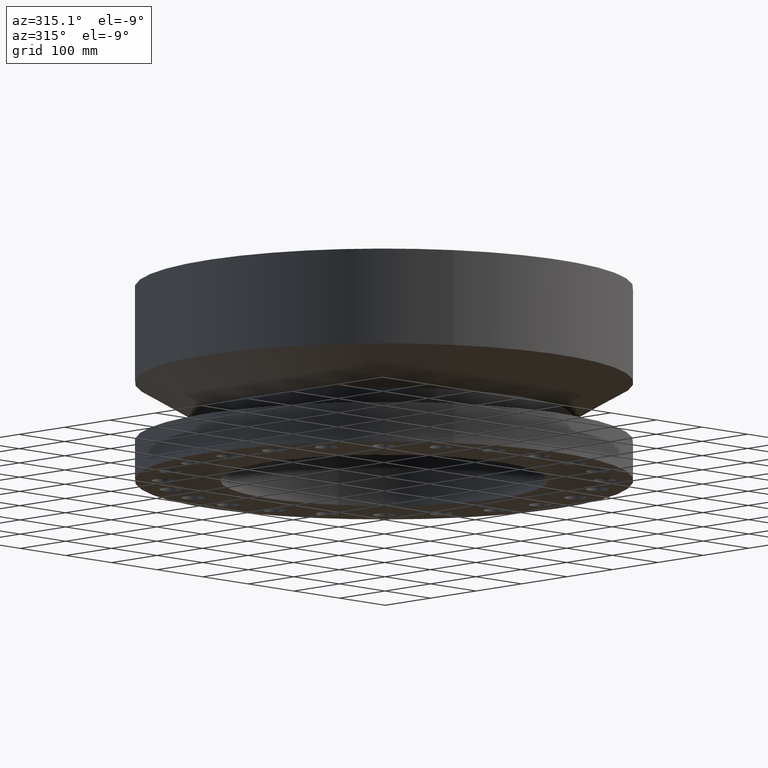
[diagram: clean part render]
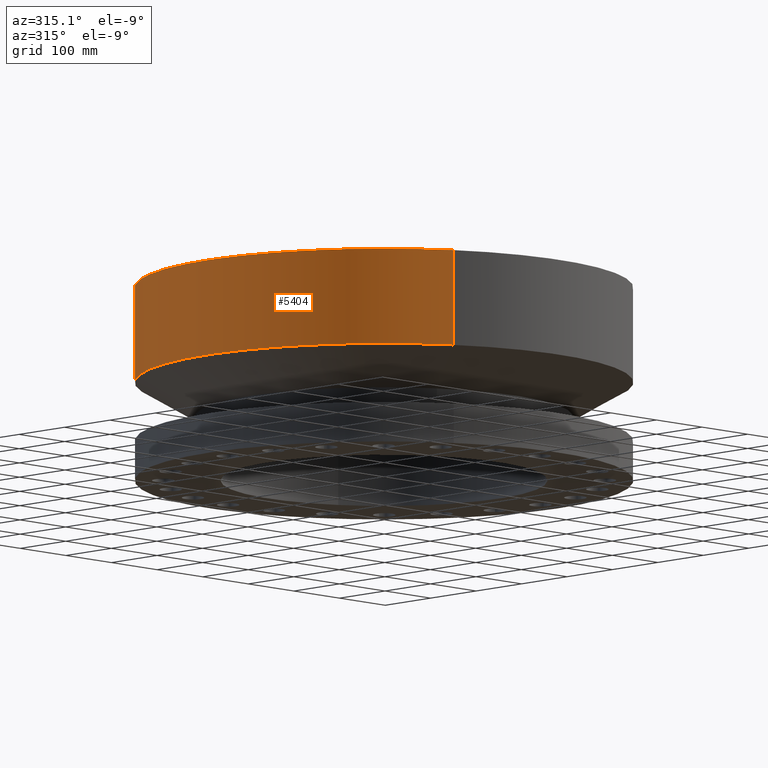
[diagram: same view with one face highlighted and labeled with its STEP entity id]
A machine part, auxiliary view. The second image highlights one B-rep face of the part: STEP entity #5404.
In plain terms, the highlighted cylindrical surface (partial cylindrical patch) has radius 387.35 mm, axis along (0, 0, -1).
Its self-contained STEP definition (entity closure, byte-faithful):
#573=AXIS2_PLACEMENT_3D('Cylinder Axis2P3D',#570,#571,#572) ;
#2514=AXIS2_PLACEMENT_3D('Circle Axis2P3D',#2512,#2513,$) ;
#5395=AXIS2_PLACEMENT_3D('Circle Axis2P3D',#5393,#5394,$) ;
#570=CARTESIAN_POINT('Axis2P3D Location',(0.,0.,5.93750000002)) ;
#2490=CARTESIAN_POINT('Vertex',(7.31123946374,13.3831340689,6.06792249333)) ;
#2497=CARTESIAN_POINT('Vertex',(-7.31123946374,-13.3831340689,6.06792249333)) ;
#2512=CARTESIAN_POINT('Axis2P3D Location',(0.,0.,6.06792249333)) ;
#5367=CARTESIAN_POINT('Line Origine',(7.31123946374,13.3831340689,9.00271124669)) ;
#5371=CARTESIAN_POINT('Vertex',(7.31123946374,13.3831340689,11.9375)) ;
#5378=CARTESIAN_POINT('Vertex',(-7.31123946374,-13.3831340689,11.9375)) ;
#5381=CARTESIAN_POINT('Line Origine',(-7.31123946374,-13.3831340689,9.00271124669)) ;
#5393=CARTESIAN_POINT('Axis2P3D Location',(0.,0.,11.9375)) ;
#571=DIRECTION('Axis2P3D Direction',(0.,0.,-0.0393700787402)) ;
#572=DIRECTION('Axis2P3D XDirection',(-0.0188750212049,-0.0345504945626,0.)) ;
#2513=DIRECTION('Axis2P3D Direction',(-0.,0.,0.0393700787402)) ;
#5368=DIRECTION('Vector Direction',(0.,0.,-0.0393700787402)) ;
#5382=DIRECTION('Vector Direction',(0.,0.,-0.0393700787402)) ;
#5394=DIRECTION('Axis2P3D Direction',(0.,0.,-0.0393700787402)) ;
#5369=VECTOR('Line Direction',#5368,0.0393700787402) ;
#5383=VECTOR('Line Direction',#5382,0.0393700787402) ;
#5399=ORIENTED_EDGE('',*,*,#2516,.F.) ;
#5400=ORIENTED_EDGE('',*,*,#5385,.T.) ;
#5401=ORIENTED_EDGE('',*,*,#5397,.T.) ;
#5402=ORIENTED_EDGE('',*,*,#5373,.F.) ;
#5404=ADVANCED_FACE('PartBody',(#5403),#574,.T.) ;
#2515=CIRCLE('generated circle',#2514,15.2500000001) ;
#5396=CIRCLE('generated circle',#5395,15.2500000001) ;
#574=CYLINDRICAL_SURFACE('generated cylinder',#573,15.2500000001) ;
#2516=EDGE_CURVE('',#2498,#2491,#2515,.F.) ;
#5373=EDGE_CURVE('',#2491,#5372,#5370,.F.) ;
#5385=EDGE_CURVE('',#2498,#5379,#5384,.F.) ;
#5397=EDGE_CURVE('',#5379,#5372,#5396,.T.) ;
#5398=EDGE_LOOP('',(#5399,#5400,#5401,#5402)) ;
#5403=FACE_OUTER_BOUND('',#5398,.T.) ;
#5370=LINE('Line',#5367,#5369) ;
#5384=LINE('Line',#5381,#5383) ;
#2491=VERTEX_POINT('',#2490) ;
#2498=VERTEX_POINT('',#2497) ;
#5372=VERTEX_POINT('',#5371) ;
#5379=VERTEX_POINT('',#5378) ;